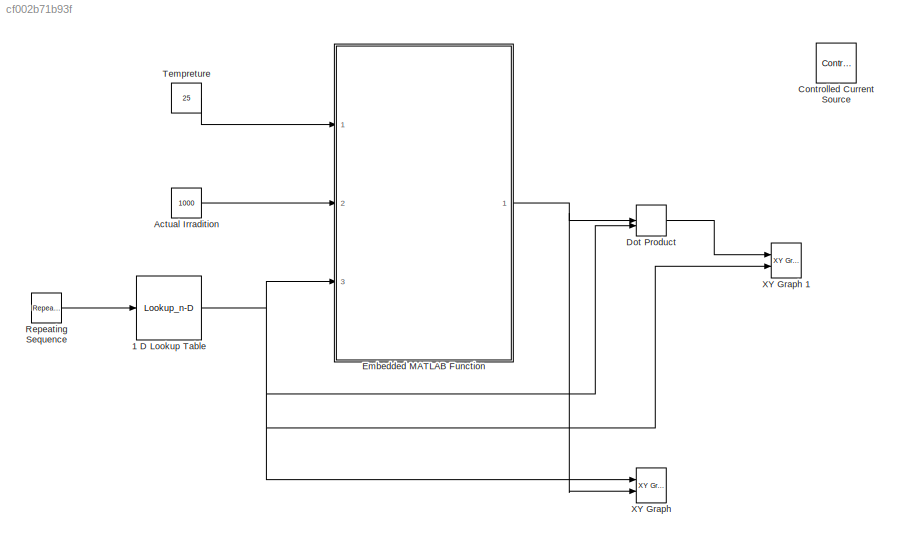
MODEL slx_cf002b71b93f
KIND model
CONFIG AbsTol = auto
CONFIG EnableMultiTasking = off
CONFIG FixedStep = auto
CONFIG MaxStep = auto
CONFIG MinStep = auto
CONFIG RelTol = 1e-3
CONFIG SampleTimeConstraint = Unconstrained
CONFIG SolverName = VariableStepAuto
CONFIG StartTime = 0.0
CONFIG StopTime = 10.0
BLOCK [Lookup_n-D] 1 D Lookup Table
  BreakpointsForDimension1 = [-5:5]
  InputPortMap = u0
  InternalRulePriority = Speed
  NumberOfTableDimensions = 1
  Ports = [1, 1]
  RndMeth = Simplest
  Table = tanh([-5:5])
BLOCK [Constant] Actual Irradition
  Value = 1000
BLOCK [Reference] Controlled Current Source  REF=fl_lib/Electrical/Electrical Sources/Controlled Current
Source
  NameLocation = right
  Ports = [0, 0, 0, 0, 0, 1, 2]
  SourceBlock = fl_lib/Electrical/Electrical Sources/Controlled Current\nSource
  SourceProductBaseCode = SS
  SourceType = Controlled Current\nSource
BLOCK [DotProduct] Dot Product 
  OutDataTypeStr = Inherit: Inherit via internal rule
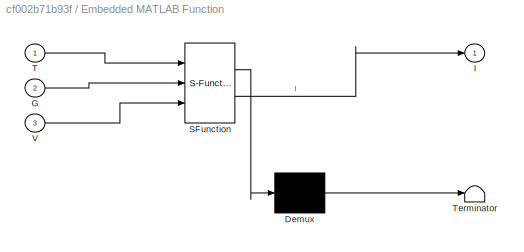
BLOCK [SubSystem] Embedded MATLAB Function
  ErrorFcn = Stateflow.Translate.translate
  PermitHierarchicalResolution = ExplicitOnly
  Ports = [3, 1]
  RequestExecContextInheritance = off
  SFBlockType = MATLAB Function
  TreatAsAtomicUnit = on
BLOCK [Demux] Embedded MATLAB Function/ Demux 
  Outputs = 1
  Ports = [1, 1]
BLOCK [S-Function] Embedded MATLAB Function/ SFunction 
  EnableBusSupport = on
  FunctionName = sf_sfun
  PortCounts = [3 2]
  Ports = [3, 2]
  SFcnIsStateOwnerBlock = off
  SFunctionDeploymentMode = off
  Tag = Stateflow S-Function 2
BLOCK [Terminator] Embedded MATLAB Function/ Terminator 
BLOCK [Inport] Embedded MATLAB Function/G
  Port = 2
BLOCK [Outport] Embedded MATLAB Function/I
BLOCK [Inport] Embedded MATLAB Function/T
BLOCK [Inport] Embedded MATLAB Function/V
  Port = 3
BLOCK [Reference] Repeating Sequence   REF=simulink/Sources/Repeating
Sequence
  Ports = [0, 1]
  SourceBlock = simulink/Sources/Repeating\nSequence
  SourceProductBaseCode = SL
  SourceType = Repeating table
BLOCK [Constant] Tempreture
  Value = 25
BLOCK [Reference] XY Graph  REF=simulink/Sinks/XY Graph
  Ports = [2]
  SourceBlock = simulink/Sinks/XY Graph
  SourceProductBaseCode = SL
  SourceType = XY scope.
BLOCK [Reference] XY Graph 1  REF=simulink/Sinks/XY Graph
  Ports = [2]
  SourceBlock = simulink/Sinks/XY Graph
  SourceProductBaseCode = SL
  SourceType = XY scope.
NET 1 D Lookup Table:1 -> Dot Product :2, Embedded MATLAB Function:3, XY Graph 1:2, XY Graph:1
LINE Actual Irradition:1 -> Embedded MATLAB Function:2
LINE Dot Product :1 -> XY Graph 1:1
NET Embedded MATLAB Function:1 -> Dot Product :1, XY Graph:2
LINE Repeating Sequence :1 -> 1 D Lookup Table:1
LINE Tempreture:1 -> Embedded MATLAB Function:1
note: NET lines group one-source signal fan-out (src -> all destinations, sorted); 1:1 wires keep LINE
CHART Embedded MATLAB Function states=1 transitions=1
  STATE_LABEL 'eML_blk_kernel()'
  STATE_LABEL 'SCRIPT:\nfunction I= fcn(T, G, V)\nclc;\nK = 1.38065e-23;   %boltzman constatnt\nq = 1.602e-19      %charge of electron\nIscn = 8.21;       %nominal SC current\nVocn = 32.9;       %nominal OC voltage\nKv = -0.123;       %tempreture voltage const\nKi = 0.0032;       %tempreture current const\nNs = 54;           %no of series connected cells\nT = T+273;        %operating temp\nTn = 25+273;       %nominal temp\n...<+481ch>'
CHART  states=0 transitions=0
